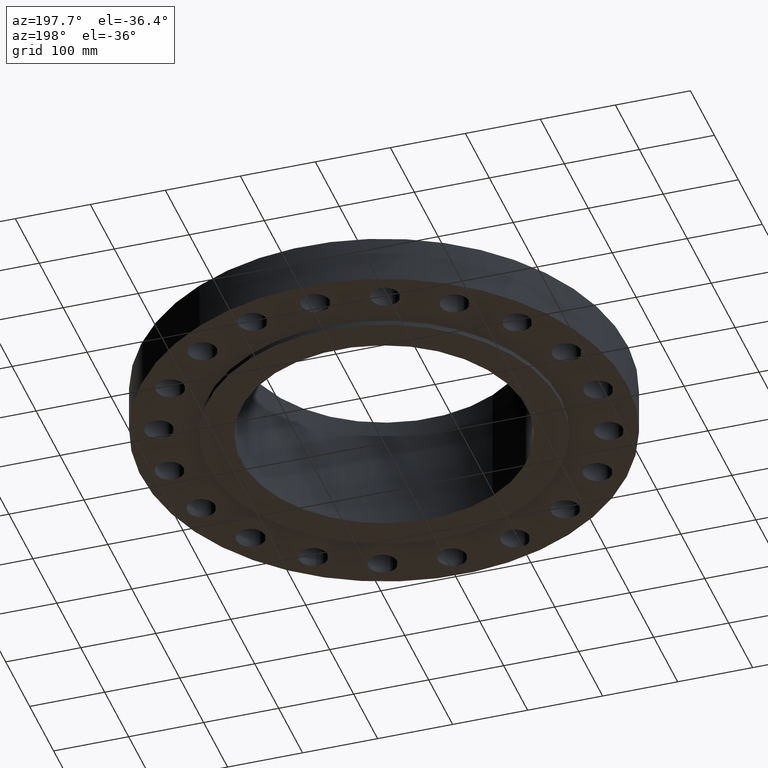
[diagram: clean part render]
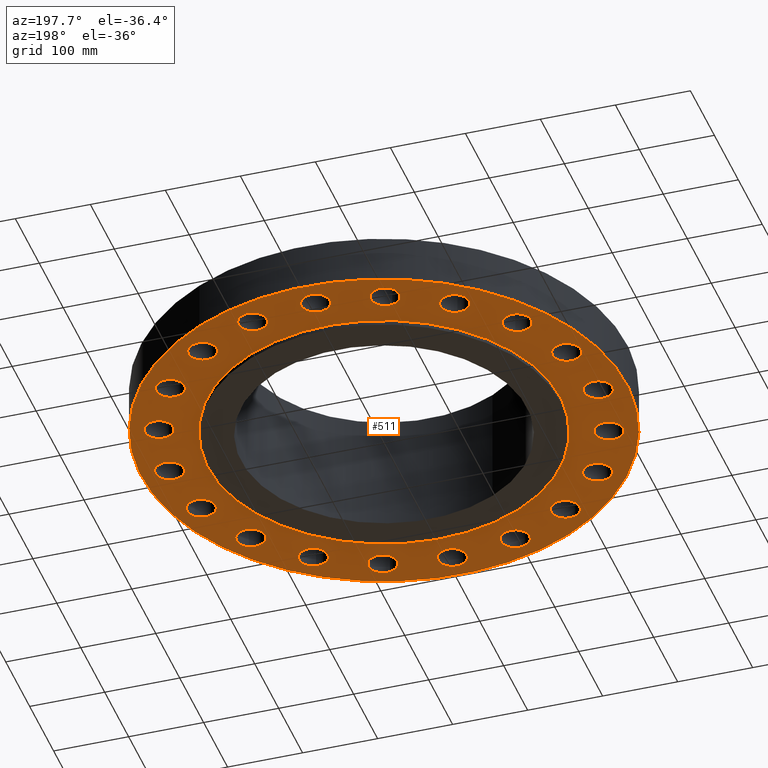
[diagram: same view with one face highlighted and labeled with its STEP entity id]
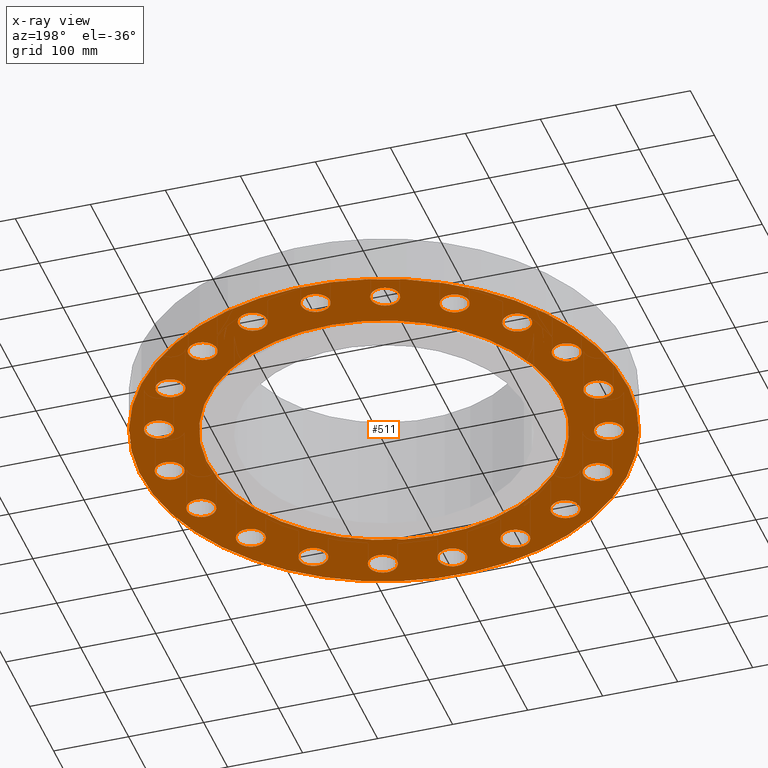
[diagram: x-ray of the same camera — body ghosted, the highlighted face saturated]
A machine part, auxiliary view. The second image highlights one B-rep face of the part: STEP entity #511.
The next image is the same camera in x-ray: the body ghosted, the highlighted face saturated — about 0% of this face is hidden behind the body in this view.
In plain terms, the highlighted planar face has unit normal (0, 0, -1).
Its self-contained STEP definition (entity closure, byte-faithful):
#51=AXIS2_PLACEMENT_3D('Circle Axis2P3D',#49,#50,$) ;
#90=AXIS2_PLACEMENT_3D('Circle Axis2P3D',#88,#89,$) ;
#127=AXIS2_PLACEMENT_3D('Plane Axis2P3D',#124,#125,#126) ;
#131=AXIS2_PLACEMENT_3D('Circle Axis2P3D',#129,#130,$) ;
#140=AXIS2_PLACEMENT_3D('Circle Axis2P3D',#138,#139,$) ;
#153=AXIS2_PLACEMENT_3D('Circle Axis2P3D',#151,#152,$) ;
#162=AXIS2_PLACEMENT_3D('Circle Axis2P3D',#160,#161,$) ;
#171=AXIS2_PLACEMENT_3D('Circle Axis2P3D',#169,#170,$) ;
#180=AXIS2_PLACEMENT_3D('Circle Axis2P3D',#178,#179,$) ;
#189=AXIS2_PLACEMENT_3D('Circle Axis2P3D',#187,#188,$) ;
#198=AXIS2_PLACEMENT_3D('Circle Axis2P3D',#196,#197,$) ;
#207=AXIS2_PLACEMENT_3D('Circle Axis2P3D',#205,#206,$) ;
#216=AXIS2_PLACEMENT_3D('Circle Axis2P3D',#214,#215,$) ;
#225=AXIS2_PLACEMENT_3D('Circle Axis2P3D',#223,#224,$) ;
#234=AXIS2_PLACEMENT_3D('Circle Axis2P3D',#232,#233,$) ;
#243=AXIS2_PLACEMENT_3D('Circle Axis2P3D',#241,#242,$) ;
#252=AXIS2_PLACEMENT_3D('Circle Axis2P3D',#250,#251,$) ;
#261=AXIS2_PLACEMENT_3D('Circle Axis2P3D',#259,#260,$) ;
#270=AXIS2_PLACEMENT_3D('Circle Axis2P3D',#268,#269,$) ;
#279=AXIS2_PLACEMENT_3D('Circle Axis2P3D',#277,#278,$) ;
#288=AXIS2_PLACEMENT_3D('Circle Axis2P3D',#286,#287,$) ;
#297=AXIS2_PLACEMENT_3D('Circle Axis2P3D',#295,#296,$) ;
#306=AXIS2_PLACEMENT_3D('Circle Axis2P3D',#304,#305,$) ;
#315=AXIS2_PLACEMENT_3D('Circle Axis2P3D',#313,#314,$) ;
#324=AXIS2_PLACEMENT_3D('Circle Axis2P3D',#322,#323,$) ;
#333=AXIS2_PLACEMENT_3D('Circle Axis2P3D',#331,#332,$) ;
#342=AXIS2_PLACEMENT_3D('Circle Axis2P3D',#340,#341,$) ;
#351=AXIS2_PLACEMENT_3D('Circle Axis2P3D',#349,#350,$) ;
#360=AXIS2_PLACEMENT_3D('Circle Axis2P3D',#358,#359,$) ;
#369=AXIS2_PLACEMENT_3D('Circle Axis2P3D',#367,#368,$) ;
#378=AXIS2_PLACEMENT_3D('Circle Axis2P3D',#376,#377,$) ;
#387=AXIS2_PLACEMENT_3D('Circle Axis2P3D',#385,#386,$) ;
#396=AXIS2_PLACEMENT_3D('Circle Axis2P3D',#394,#395,$) ;
#405=AXIS2_PLACEMENT_3D('Circle Axis2P3D',#403,#404,$) ;
#414=AXIS2_PLACEMENT_3D('Circle Axis2P3D',#412,#413,$) ;
#423=AXIS2_PLACEMENT_3D('Circle Axis2P3D',#421,#422,$) ;
#432=AXIS2_PLACEMENT_3D('Circle Axis2P3D',#430,#431,$) ;
#441=AXIS2_PLACEMENT_3D('Circle Axis2P3D',#439,#440,$) ;
#450=AXIS2_PLACEMENT_3D('Circle Axis2P3D',#448,#449,$) ;
#459=AXIS2_PLACEMENT_3D('Circle Axis2P3D',#457,#458,$) ;
#468=AXIS2_PLACEMENT_3D('Circle Axis2P3D',#466,#467,$) ;
#477=AXIS2_PLACEMENT_3D('Circle Axis2P3D',#475,#476,$) ;
#486=AXIS2_PLACEMENT_3D('Circle Axis2P3D',#484,#485,$) ;
#495=AXIS2_PLACEMENT_3D('Circle Axis2P3D',#493,#494,$) ;
#504=AXIS2_PLACEMENT_3D('Circle Axis2P3D',#502,#503,$) ;
#44=CARTESIAN_POINT('Vertex',(10.5918130786,0.359569153963,-6.51237594035E-013)) ;
#49=CARTESIAN_POINT('Axis2P3D Location',(11.25,0.,-6.51237594035E-013)) ;
#53=CARTESIAN_POINT('Vertex',(11.9081869214,-0.359569153955,-6.51237594035E-013)) ;
#88=CARTESIAN_POINT('Axis2P3D Location',(11.25,0.,-6.51237594035E-013)) ;
#124=CARTESIAN_POINT('Axis2P3D Location',(0.,9.25000000004,0.)) ;
#129=CARTESIAN_POINT('Axis2P3D Location',(-3.0855458171E-011,1.2855788175E-011,0.)) ;
#133=CARTESIAN_POINT('Vertex',(-6.11267561727,-11.1891776642,-4.66720275725E-012)) ;
#135=CARTESIAN_POINT('Vertex',(6.11267561726,11.1891776642,-4.66720275725E-012)) ;
#138=CARTESIAN_POINT('Axis2P3D Location',(-1.1189649382E-015,-3.99918068914E-012,0.)) ;
#151=CARTESIAN_POINT('Axis2P3D Location',(0.,-3.99918068914E-012,0.)) ;
#155=CARTESIAN_POINT('Vertex',(4.43468623211,8.11763869752,-4.66720275725E-012)) ;
#157=CARTESIAN_POINT('Vertex',(-4.43468623211,-8.11763869752,-4.66720275725E-012)) ;
#160=CARTESIAN_POINT('Axis2P3D Location',(0.,-3.99918068914E-012,0.)) ;
#169=CARTESIAN_POINT('Axis2P3D Location',(10.6993858084,-3.47644118673,0.)) ;
#173=CARTESIAN_POINT('Vertex',(10.184525827,-2.93107965566,0.)) ;
#175=CARTESIAN_POINT('Vertex',(11.2142457897,-4.02180271788,0.)) ;
#178=CARTESIAN_POINT('Axis2P3D Location',(10.6993858084,-3.47644118673,0.)) ;
#187=CARTESIAN_POINT('Axis2P3D Location',(9.10144118676,-6.61258408833,0.)) ;
#191=CARTESIAN_POINT('Vertex',(8.78030622774,-5.93481396648,0.)) ;
#193=CARTESIAN_POINT('Vertex',(9.42257614579,-7.29035421018,0.)) ;
#196=CARTESIAN_POINT('Axis2P3D Location',(9.10144118676,-6.61258408833,0.)) ;
#205=CARTESIAN_POINT('Axis2P3D Location',(6.61258408837,-9.10144118673,0.)) ;
#209=CARTESIAN_POINT('Vertex',(6.51660907889,-8.35760733597,0.)) ;
#211=CARTESIAN_POINT('Vertex',(6.70855909777,-9.84527503749,0.)) ;
#214=CARTESIAN_POINT('Axis2P3D Location',(6.61258408829,-9.10144118674,0.)) ;
#223=CARTESIAN_POINT('Axis2P3D Location',(3.4764411867,-10.6993858084,0.)) ;
#227=CARTESIAN_POINT('Vertex',(3.61502082945,-9.96229986859,0.)) ;
#229=CARTESIAN_POINT('Vertex',(3.33786154401,-11.4364717482,0.)) ;
#232=CARTESIAN_POINT('Axis2P3D Location',(3.47644118676,-10.6993858084,0.)) ;
#241=CARTESIAN_POINT('Axis2P3D Location',(-4.36652988483E-011,-11.25,0.)) ;
#245=CARTESIAN_POINT('Vertex',(0.359569153946,-10.5918130786,0.)) ;
#247=CARTESIAN_POINT('Vertex',(-0.359569153946,-11.9081869215,0.)) ;
#250=CARTESIAN_POINT('Axis2P3D Location',(1.281158906E-011,-11.25,0.)) ;
#259=CARTESIAN_POINT('Axis2P3D Location',(-3.47644118676,-10.6993858084,0.)) ;
#263=CARTESIAN_POINT('Vertex',(-2.93107965565,-10.1845258271,0.)) ;
#265=CARTESIAN_POINT('Vertex',(-4.02180271788,-11.2142457897,0.)) ;
#268=CARTESIAN_POINT('Axis2P3D Location',(-3.47644118676,-10.6993858084,0.)) ;
#277=CARTESIAN_POINT('Axis2P3D Location',(-6.61258408833,-9.10144118677,0.)) ;
#281=CARTESIAN_POINT('Vertex',(-5.93481396648,-8.78030622774,0.)) ;
#283=CARTESIAN_POINT('Vertex',(-7.29035421018,-9.42257614579,0.)) ;
#286=CARTESIAN_POINT('Axis2P3D Location',(-6.61258408833,-9.10144118677,0.)) ;
#295=CARTESIAN_POINT('Axis2P3D Location',(-9.10144118676,-6.61258408834,0.)) ;
#299=CARTESIAN_POINT('Vertex',(-8.35760733597,-6.51660907889,0.)) ;
#301=CARTESIAN_POINT('Vertex',(-9.84527503756,-6.70855909777,0.)) ;
#304=CARTESIAN_POINT('Axis2P3D Location',(-9.10144118676,-6.61258408833,0.)) ;
#313=CARTESIAN_POINT('Axis2P3D Location',(-10.6993858084,-3.4764411867,0.)) ;
#317=CARTESIAN_POINT('Vertex',(-9.96229986858,-3.61502082945,0.)) ;
#319=CARTESIAN_POINT('Vertex',(-11.4364717482,-3.33786154401,0.)) ;
#322=CARTESIAN_POINT('Axis2P3D Location',(-10.6993858084,-3.47644118676,0.)) ;
#331=CARTESIAN_POINT('Axis2P3D Location',(-11.25,3.96661880944E-011,0.)) ;
#335=CARTESIAN_POINT('Vertex',(-10.5918130786,-0.35956915395,0.)) ;
#337=CARTESIAN_POINT('Vertex',(-11.9081869215,0.359569153942,0.)) ;
#340=CARTESIAN_POINT('Axis2P3D Location',(-11.25,-1.68113292316E-011,0.)) ;
#349=CARTESIAN_POINT('Axis2P3D Location',(-10.6993858084,3.47644118676,0.)) ;
#353=CARTESIAN_POINT('Vertex',(-10.184525827,2.93107965565,0.)) ;
#355=CARTESIAN_POINT('Vertex',(-11.2142457897,4.02180271787,0.)) ;
#358=CARTESIAN_POINT('Axis2P3D Location',(-10.6993858084,3.47644118676,0.)) ;
#367=CARTESIAN_POINT('Axis2P3D Location',(-9.10144118676,6.61258408832,0.)) ;
#371=CARTESIAN_POINT('Vertex',(-8.78030622774,5.93481396647,0.)) ;
#373=CARTESIAN_POINT('Vertex',(-9.42257614579,7.29035421018,0.)) ;
#376=CARTESIAN_POINT('Axis2P3D Location',(-9.10144118676,6.61258408832,0.)) ;
#385=CARTESIAN_POINT('Axis2P3D Location',(-6.61258408833,9.10144118676,0.)) ;
#389=CARTESIAN_POINT('Vertex',(-6.51660907889,8.35760733596,0.)) ;
#391=CARTESIAN_POINT('Vertex',(-6.70855909777,9.84527503756,0.)) ;
#394=CARTESIAN_POINT('Axis2P3D Location',(-6.61258408833,9.10144118676,0.)) ;
#403=CARTESIAN_POINT('Axis2P3D Location',(-3.47644118673,10.6993858084,0.)) ;
#407=CARTESIAN_POINT('Vertex',(-3.61502082945,9.96229986865,0.)) ;
#409=CARTESIAN_POINT('Vertex',(-3.33786154401,11.4364717482,0.)) ;
#412=CARTESIAN_POINT('Axis2P3D Location',(-3.47644118671,10.6993858084,0.)) ;
#421=CARTESIAN_POINT('Axis2P3D Location',(4.36652988483E-011,11.25,0.)) ;
#425=CARTESIAN_POINT('Vertex',(-0.359569153946,10.5918130786,0.)) ;
#427=CARTESIAN_POINT('Vertex',(0.359569153946,11.9081869215,0.)) ;
#430=CARTESIAN_POINT('Axis2P3D Location',(-1.281158906E-011,11.25,0.)) ;
#439=CARTESIAN_POINT('Axis2P3D Location',(3.47644118676,10.6993858084,0.)) ;
#443=CARTESIAN_POINT('Vertex',(2.93107965565,10.184525827,0.)) ;
#445=CARTESIAN_POINT('Vertex',(4.02180271788,11.2142457897,0.)) ;
#448=CARTESIAN_POINT('Axis2P3D Location',(3.47644118676,10.6993858084,0.)) ;
#457=CARTESIAN_POINT('Axis2P3D Location',(6.61258408833,9.10144118676,0.)) ;
#461=CARTESIAN_POINT('Vertex',(5.93481396648,8.78030622774,0.)) ;
#463=CARTESIAN_POINT('Vertex',(7.29035421018,9.42257614579,0.)) ;
#466=CARTESIAN_POINT('Axis2P3D Location',(6.61258408833,9.10144118676,0.)) ;
#475=CARTESIAN_POINT('Axis2P3D Location',(9.10144118676,6.61258408833,0.)) ;
#479=CARTESIAN_POINT('Vertex',(8.35760733597,6.51660907889,0.)) ;
#481=CARTESIAN_POINT('Vertex',(9.84527503756,6.70855909776,0.)) ;
#484=CARTESIAN_POINT('Axis2P3D Location',(9.10144118676,6.61258408832,0.)) ;
#493=CARTESIAN_POINT('Axis2P3D Location',(10.6993858084,3.4764411867,0.)) ;
#497=CARTESIAN_POINT('Vertex',(9.96229986858,3.61502082945,0.)) ;
#499=CARTESIAN_POINT('Vertex',(11.4364717482,3.337861544,0.)) ;
#502=CARTESIAN_POINT('Axis2P3D Location',(10.6993858084,3.47644118675,0.)) ;
#50=DIRECTION('Axis2P3D Direction',(0.,-0.,-0.0393700787402)) ;
#89=DIRECTION('Axis2P3D Direction',(0.,-0.,-0.0393700787402)) ;
#125=DIRECTION('Axis2P3D Direction',(0.,0.,-0.0393700787402)) ;
#126=DIRECTION('Axis2P3D XDirection',(0.0393700787402,0.,0.)) ;
#130=DIRECTION('Axis2P3D Direction',(0.,0.,-0.0393700787402)) ;
#139=DIRECTION('Axis2P3D Direction',(0.,0.,-0.0393700787402)) ;
#152=DIRECTION('Axis2P3D Direction',(0.,0.,-0.0393700787402)) ;
#161=DIRECTION('Axis2P3D Direction',(0.,0.,-0.0393700787402)) ;
#170=DIRECTION('Axis2P3D Direction',(0.,0.,-0.0393700787402)) ;
#179=DIRECTION('Axis2P3D Direction',(0.,0.,-0.0393700787402)) ;
#188=DIRECTION('Axis2P3D Direction',(0.,0.,-0.0393700787402)) ;
#197=DIRECTION('Axis2P3D Direction',(0.,0.,-0.0393700787402)) ;
#206=DIRECTION('Axis2P3D Direction',(0.,0.,-0.0393700787402)) ;
#215=DIRECTION('Axis2P3D Direction',(0.,0.,-0.0393700787402)) ;
#224=DIRECTION('Axis2P3D Direction',(0.,0.,-0.0393700787402)) ;
#233=DIRECTION('Axis2P3D Direction',(0.,0.,-0.0393700787402)) ;
#242=DIRECTION('Axis2P3D Direction',(0.,0.,-0.0393700787402)) ;
#251=DIRECTION('Axis2P3D Direction',(0.,0.,-0.0393700787402)) ;
#260=DIRECTION('Axis2P3D Direction',(0.,0.,-0.0393700787402)) ;
#269=DIRECTION('Axis2P3D Direction',(0.,0.,-0.0393700787402)) ;
#278=DIRECTION('Axis2P3D Direction',(0.,0.,-0.0393700787402)) ;
#287=DIRECTION('Axis2P3D Direction',(0.,0.,-0.0393700787402)) ;
#296=DIRECTION('Axis2P3D Direction',(0.,0.,-0.0393700787402)) ;
#305=DIRECTION('Axis2P3D Direction',(0.,0.,-0.0393700787402)) ;
#314=DIRECTION('Axis2P3D Direction',(0.,0.,-0.0393700787402)) ;
#323=DIRECTION('Axis2P3D Direction',(0.,0.,-0.0393700787402)) ;
#332=DIRECTION('Axis2P3D Direction',(0.,0.,-0.0393700787402)) ;
#341=DIRECTION('Axis2P3D Direction',(0.,0.,-0.0393700787402)) ;
#350=DIRECTION('Axis2P3D Direction',(0.,0.,-0.0393700787402)) ;
#359=DIRECTION('Axis2P3D Direction',(0.,0.,-0.0393700787402)) ;
#368=DIRECTION('Axis2P3D Direction',(0.,0.,-0.0393700787402)) ;
#377=DIRECTION('Axis2P3D Direction',(0.,0.,-0.0393700787402)) ;
#386=DIRECTION('Axis2P3D Direction',(0.,0.,-0.0393700787402)) ;
#395=DIRECTION('Axis2P3D Direction',(0.,0.,-0.0393700787402)) ;
#404=DIRECTION('Axis2P3D Direction',(0.,0.,-0.0393700787402)) ;
#413=DIRECTION('Axis2P3D Direction',(0.,0.,-0.0393700787402)) ;
#422=DIRECTION('Axis2P3D Direction',(0.,0.,-0.0393700787402)) ;
#431=DIRECTION('Axis2P3D Direction',(0.,0.,-0.0393700787402)) ;
#440=DIRECTION('Axis2P3D Direction',(0.,0.,-0.0393700787402)) ;
#449=DIRECTION('Axis2P3D Direction',(0.,0.,-0.0393700787402)) ;
#458=DIRECTION('Axis2P3D Direction',(0.,0.,-0.0393700787402)) ;
#467=DIRECTION('Axis2P3D Direction',(0.,0.,-0.0393700787402)) ;
#476=DIRECTION('Axis2P3D Direction',(0.,0.,-0.0393700787402)) ;
#485=DIRECTION('Axis2P3D Direction',(0.,0.,-0.0393700787402)) ;
#494=DIRECTION('Axis2P3D Direction',(0.,0.,-0.0393700787402)) ;
#503=DIRECTION('Axis2P3D Direction',(0.,0.,-0.0393700787402)) ;
#144=ORIENTED_EDGE('',*,*,#137,.T.) ;
#145=ORIENTED_EDGE('',*,*,#142,.T.) ;
#148=ORIENTED_EDGE('',*,*,#92,.F.) ;
#149=ORIENTED_EDGE('',*,*,#55,.F.) ;
#166=ORIENTED_EDGE('',*,*,#159,.F.) ;
#167=ORIENTED_EDGE('',*,*,#164,.F.) ;
#184=ORIENTED_EDGE('',*,*,#177,.F.) ;
#185=ORIENTED_EDGE('',*,*,#182,.F.) ;
#202=ORIENTED_EDGE('',*,*,#195,.F.) ;
#203=ORIENTED_EDGE('',*,*,#200,.F.) ;
#220=ORIENTED_EDGE('',*,*,#213,.F.) ;
#221=ORIENTED_EDGE('',*,*,#218,.F.) ;
#238=ORIENTED_EDGE('',*,*,#231,.F.) ;
#239=ORIENTED_EDGE('',*,*,#236,.F.) ;
#256=ORIENTED_EDGE('',*,*,#249,.F.) ;
#257=ORIENTED_EDGE('',*,*,#254,.F.) ;
#274=ORIENTED_EDGE('',*,*,#267,.F.) ;
#275=ORIENTED_EDGE('',*,*,#272,.F.) ;
#292=ORIENTED_EDGE('',*,*,#285,.F.) ;
#293=ORIENTED_EDGE('',*,*,#290,.F.) ;
#310=ORIENTED_EDGE('',*,*,#303,.F.) ;
#311=ORIENTED_EDGE('',*,*,#308,.F.) ;
#328=ORIENTED_EDGE('',*,*,#321,.F.) ;
#329=ORIENTED_EDGE('',*,*,#326,.F.) ;
#346=ORIENTED_EDGE('',*,*,#339,.F.) ;
#347=ORIENTED_EDGE('',*,*,#344,.F.) ;
#364=ORIENTED_EDGE('',*,*,#357,.F.) ;
#365=ORIENTED_EDGE('',*,*,#362,.F.) ;
#382=ORIENTED_EDGE('',*,*,#375,.F.) ;
#383=ORIENTED_EDGE('',*,*,#380,.F.) ;
#400=ORIENTED_EDGE('',*,*,#393,.F.) ;
#401=ORIENTED_EDGE('',*,*,#398,.F.) ;
#418=ORIENTED_EDGE('',*,*,#411,.F.) ;
#419=ORIENTED_EDGE('',*,*,#416,.F.) ;
#436=ORIENTED_EDGE('',*,*,#429,.F.) ;
#437=ORIENTED_EDGE('',*,*,#434,.F.) ;
#454=ORIENTED_EDGE('',*,*,#447,.F.) ;
#455=ORIENTED_EDGE('',*,*,#452,.F.) ;
#472=ORIENTED_EDGE('',*,*,#465,.F.) ;
#473=ORIENTED_EDGE('',*,*,#470,.F.) ;
#490=ORIENTED_EDGE('',*,*,#483,.F.) ;
#491=ORIENTED_EDGE('',*,*,#488,.F.) ;
#508=ORIENTED_EDGE('',*,*,#501,.F.) ;
#509=ORIENTED_EDGE('',*,*,#506,.F.) ;
#150=FACE_BOUND('',#147,.T.) ;
#168=FACE_BOUND('',#165,.T.) ;
#186=FACE_BOUND('',#183,.T.) ;
#204=FACE_BOUND('',#201,.T.) ;
#222=FACE_BOUND('',#219,.T.) ;
#240=FACE_BOUND('',#237,.T.) ;
#258=FACE_BOUND('',#255,.T.) ;
#276=FACE_BOUND('',#273,.T.) ;
#294=FACE_BOUND('',#291,.T.) ;
#312=FACE_BOUND('',#309,.T.) ;
#330=FACE_BOUND('',#327,.T.) ;
#348=FACE_BOUND('',#345,.T.) ;
#366=FACE_BOUND('',#363,.T.) ;
#384=FACE_BOUND('',#381,.T.) ;
#402=FACE_BOUND('',#399,.T.) ;
#420=FACE_BOUND('',#417,.T.) ;
#438=FACE_BOUND('',#435,.T.) ;
#456=FACE_BOUND('',#453,.T.) ;
#474=FACE_BOUND('',#471,.T.) ;
#492=FACE_BOUND('',#489,.T.) ;
#510=FACE_BOUND('',#507,.T.) ;
#511=ADVANCED_FACE('PartBody',(#146,#150,#168,#186,#204,#222,#240,#258,#276,#294,#312,#330,#348,#366,#384,#402,#420,#438,#456,#474,#492,#510),#128,.T.) ;
#52=CIRCLE('generated circle',#51,0.750000000003) ;
#91=CIRCLE('generated circle',#90,0.750000000003) ;
#132=CIRCLE('generated circle',#131,12.7500000001) ;
#141=CIRCLE('generated circle',#140,12.7500000001) ;
#154=CIRCLE('generated circle',#153,9.25000000003) ;
#163=CIRCLE('generated circle',#162,9.25000000003) ;
#172=CIRCLE('generated circle',#171,0.750000000005) ;
#181=CIRCLE('generated circle',#180,0.750000000005) ;
#190=CIRCLE('generated circle',#189,0.749999999989) ;
#199=CIRCLE('generated circle',#198,0.749999999989) ;
#208=CIRCLE('generated circle',#207,0.749999999983) ;
#217=CIRCLE('generated circle',#216,0.749999999983) ;
#226=CIRCLE('generated circle',#225,0.750000000029) ;
#235=CIRCLE('generated circle',#234,0.750000000029) ;
#244=CIRCLE('generated circle',#243,0.750000000009) ;
#253=CIRCLE('generated circle',#252,0.750000000009) ;
#262=CIRCLE('generated circle',#261,0.750000000005) ;
#271=CIRCLE('generated circle',#270,0.750000000005) ;
#280=CIRCLE('generated circle',#279,0.749999999989) ;
#289=CIRCLE('generated circle',#288,0.749999999989) ;
#298=CIRCLE('generated circle',#297,0.75000000002) ;
#307=CIRCLE('generated circle',#306,0.75000000002) ;
#316=CIRCLE('generated circle',#315,0.750000000029) ;
#325=CIRCLE('generated circle',#324,0.750000000029) ;
#334=CIRCLE('generated circle',#333,0.750000000009) ;
#343=CIRCLE('generated circle',#342,0.750000000009) ;
#352=CIRCLE('generated circle',#351,0.750000000005) ;
#361=CIRCLE('generated circle',#360,0.750000000005) ;
#370=CIRCLE('generated circle',#369,0.749999999989) ;
#379=CIRCLE('generated circle',#378,0.749999999989) ;
#388=CIRCLE('generated circle',#387,0.75000000002) ;
#397=CIRCLE('generated circle',#396,0.75000000002) ;
#406=CIRCLE('generated circle',#405,0.749999999993) ;
#415=CIRCLE('generated circle',#414,0.749999999993) ;
#424=CIRCLE('generated circle',#423,0.750000000009) ;
#433=CIRCLE('generated circle',#432,0.750000000009) ;
#442=CIRCLE('generated circle',#441,0.750000000005) ;
#451=CIRCLE('generated circle',#450,0.750000000005) ;
#460=CIRCLE('generated circle',#459,0.749999999989) ;
#469=CIRCLE('generated circle',#468,0.749999999989) ;
#478=CIRCLE('generated circle',#477,0.75000000002) ;
#487=CIRCLE('generated circle',#486,0.75000000002) ;
#496=CIRCLE('generated circle',#495,0.750000000029) ;
#505=CIRCLE('generated circle',#504,0.750000000029) ;
#55=EDGE_CURVE('',#45,#54,#52,.T.) ;
#92=EDGE_CURVE('',#54,#45,#91,.T.) ;
#137=EDGE_CURVE('',#134,#136,#132,.T.) ;
#142=EDGE_CURVE('',#136,#134,#141,.T.) ;
#159=EDGE_CURVE('',#156,#158,#154,.T.) ;
#164=EDGE_CURVE('',#158,#156,#163,.T.) ;
#177=EDGE_CURVE('',#174,#176,#172,.T.) ;
#182=EDGE_CURVE('',#176,#174,#181,.T.) ;
#195=EDGE_CURVE('',#192,#194,#190,.T.) ;
#200=EDGE_CURVE('',#194,#192,#199,.T.) ;
#213=EDGE_CURVE('',#210,#212,#208,.T.) ;
#218=EDGE_CURVE('',#212,#210,#217,.T.) ;
#231=EDGE_CURVE('',#228,#230,#226,.T.) ;
#236=EDGE_CURVE('',#230,#228,#235,.T.) ;
#249=EDGE_CURVE('',#246,#248,#244,.T.) ;
#254=EDGE_CURVE('',#248,#246,#253,.T.) ;
#267=EDGE_CURVE('',#264,#266,#262,.T.) ;
#272=EDGE_CURVE('',#266,#264,#271,.T.) ;
#285=EDGE_CURVE('',#282,#284,#280,.T.) ;
#290=EDGE_CURVE('',#284,#282,#289,.T.) ;
#303=EDGE_CURVE('',#300,#302,#298,.T.) ;
#308=EDGE_CURVE('',#302,#300,#307,.T.) ;
#321=EDGE_CURVE('',#318,#320,#316,.T.) ;
#326=EDGE_CURVE('',#320,#318,#325,.T.) ;
#339=EDGE_CURVE('',#336,#338,#334,.T.) ;
#344=EDGE_CURVE('',#338,#336,#343,.T.) ;
#357=EDGE_CURVE('',#354,#356,#352,.T.) ;
#362=EDGE_CURVE('',#356,#354,#361,.T.) ;
#375=EDGE_CURVE('',#372,#374,#370,.T.) ;
#380=EDGE_CURVE('',#374,#372,#379,.T.) ;
#393=EDGE_CURVE('',#390,#392,#388,.T.) ;
#398=EDGE_CURVE('',#392,#390,#397,.T.) ;
#411=EDGE_CURVE('',#408,#410,#406,.T.) ;
#416=EDGE_CURVE('',#410,#408,#415,.T.) ;
#429=EDGE_CURVE('',#426,#428,#424,.T.) ;
#434=EDGE_CURVE('',#428,#426,#433,.T.) ;
#447=EDGE_CURVE('',#444,#446,#442,.T.) ;
#452=EDGE_CURVE('',#446,#444,#451,.T.) ;
#465=EDGE_CURVE('',#462,#464,#460,.T.) ;
#470=EDGE_CURVE('',#464,#462,#469,.T.) ;
#483=EDGE_CURVE('',#480,#482,#478,.T.) ;
#488=EDGE_CURVE('',#482,#480,#487,.T.) ;
#501=EDGE_CURVE('',#498,#500,#496,.T.) ;
#506=EDGE_CURVE('',#500,#498,#505,.T.) ;
#143=EDGE_LOOP('',(#144,#145)) ;
#147=EDGE_LOOP('',(#148,#149)) ;
#165=EDGE_LOOP('',(#166,#167)) ;
#183=EDGE_LOOP('',(#184,#185)) ;
#201=EDGE_LOOP('',(#202,#203)) ;
#219=EDGE_LOOP('',(#220,#221)) ;
#237=EDGE_LOOP('',(#238,#239)) ;
#255=EDGE_LOOP('',(#256,#257)) ;
#273=EDGE_LOOP('',(#274,#275)) ;
#291=EDGE_LOOP('',(#292,#293)) ;
#309=EDGE_LOOP('',(#310,#311)) ;
#327=EDGE_LOOP('',(#328,#329)) ;
#345=EDGE_LOOP('',(#346,#347)) ;
#363=EDGE_LOOP('',(#364,#365)) ;
#381=EDGE_LOOP('',(#382,#383)) ;
#399=EDGE_LOOP('',(#400,#401)) ;
#417=EDGE_LOOP('',(#418,#419)) ;
#435=EDGE_LOOP('',(#436,#437)) ;
#453=EDGE_LOOP('',(#454,#455)) ;
#471=EDGE_LOOP('',(#472,#473)) ;
#489=EDGE_LOOP('',(#490,#491)) ;
#507=EDGE_LOOP('',(#508,#509)) ;
#146=FACE_OUTER_BOUND('',#143,.T.) ;
#128=PLANE('',#127) ;
#45=VERTEX_POINT('',#44) ;
#54=VERTEX_POINT('',#53) ;
#134=VERTEX_POINT('',#133) ;
#136=VERTEX_POINT('',#135) ;
#156=VERTEX_POINT('',#155) ;
#158=VERTEX_POINT('',#157) ;
#174=VERTEX_POINT('',#173) ;
#176=VERTEX_POINT('',#175) ;
#192=VERTEX_POINT('',#191) ;
#194=VERTEX_POINT('',#193) ;
#210=VERTEX_POINT('',#209) ;
#212=VERTEX_POINT('',#211) ;
#228=VERTEX_POINT('',#227) ;
#230=VERTEX_POINT('',#229) ;
#246=VERTEX_POINT('',#245) ;
#248=VERTEX_POINT('',#247) ;
#264=VERTEX_POINT('',#263) ;
#266=VERTEX_POINT('',#265) ;
#282=VERTEX_POINT('',#281) ;
#284=VERTEX_POINT('',#283) ;
#300=VERTEX_POINT('',#299) ;
#302=VERTEX_POINT('',#301) ;
#318=VERTEX_POINT('',#317) ;
#320=VERTEX_POINT('',#319) ;
#336=VERTEX_POINT('',#335) ;
#338=VERTEX_POINT('',#337) ;
#354=VERTEX_POINT('',#353) ;
#356=VERTEX_POINT('',#355) ;
#372=VERTEX_POINT('',#371) ;
#374=VERTEX_POINT('',#373) ;
#390=VERTEX_POINT('',#389) ;
#392=VERTEX_POINT('',#391) ;
#408=VERTEX_POINT('',#407) ;
#410=VERTEX_POINT('',#409) ;
#426=VERTEX_POINT('',#425) ;
#428=VERTEX_POINT('',#427) ;
#444=VERTEX_POINT('',#443) ;
#446=VERTEX_POINT('',#445) ;
#462=VERTEX_POINT('',#461) ;
#464=VERTEX_POINT('',#463) ;
#480=VERTEX_POINT('',#479) ;
#482=VERTEX_POINT('',#481) ;
#498=VERTEX_POINT('',#497) ;
#500=VERTEX_POINT('',#499) ;